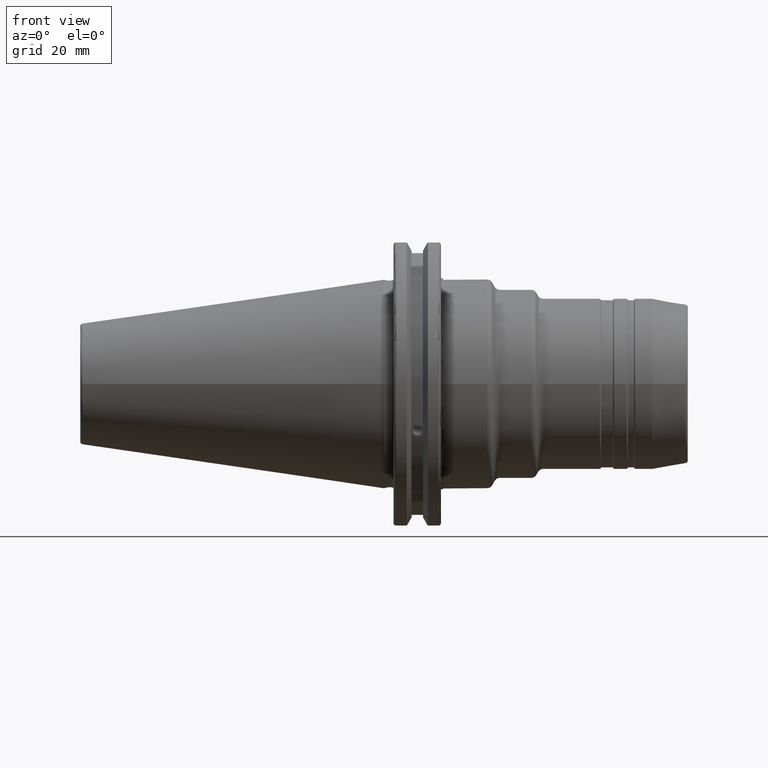
[diagram: clean part render]
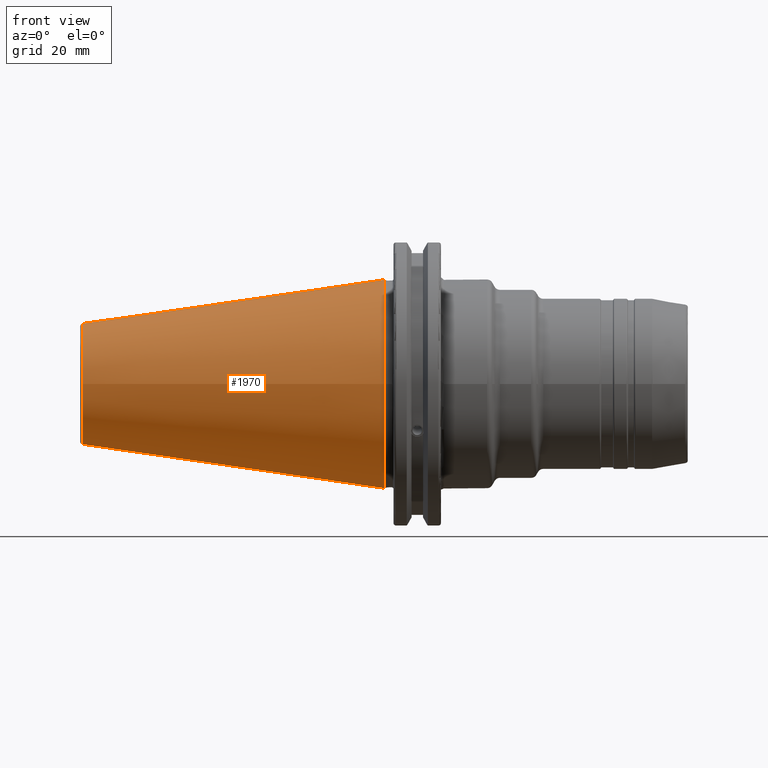
[diagram: same view with one face highlighted and labeled with its STEP entity id]
A machine part, front view. The second image highlights one B-rep face of the part: STEP entity #1970.
In plain terms, the highlighted conical surface has half-angle 8.297 deg.
Its self-contained STEP definition (entity closure, byte-faithful):
#104=CONICAL_SURFACE('',#2230,27.5166666666666,0.14481249823894);
#250=FACE_OUTER_BOUND('',#377,.T.);
#377=EDGE_LOOP('',(#1721,#1722,#1723,#1724,#1725));
#493=LINE('',#3895,#598);
#598=VECTOR('',#2778,27.5166666666666);
#738=CIRCLE('',#2224,20.233121911427);
#739=CIRCLE('',#2225,20.233121911427);
#743=CIRCLE('',#2231,34.925);
#941=VERTEX_POINT('',#3882);
#942=VERTEX_POINT('',#3883);
#945=VERTEX_POINT('',#3893);
#1217=EDGE_CURVE('',#941,#942,#738,.T.);
#1218=EDGE_CURVE('',#942,#941,#739,.T.);
#1222=EDGE_CURVE('',#945,#945,#743,.T.);
#1223=EDGE_CURVE('',#945,#942,#493,.T.);
#1721=ORIENTED_EDGE('',*,*,#1222,.F.);
#1722=ORIENTED_EDGE('',*,*,#1223,.T.);
#1723=ORIENTED_EDGE('',*,*,#1217,.F.);
#1724=ORIENTED_EDGE('',*,*,#1218,.F.);
#1725=ORIENTED_EDGE('',*,*,#1223,.F.);
#1970=ADVANCED_FACE('',(#250),#104,.T.);
#2224=AXIS2_PLACEMENT_3D('',#3884,#2762,#2763);
#2225=AXIS2_PLACEMENT_3D('',#3885,#2764,#2765);
#2230=AXIS2_PLACEMENT_3D('',#3892,#2774,#2775);
#2231=AXIS2_PLACEMENT_3D('',#3894,#2776,#2777);
#2762=DIRECTION('center_axis',(-1.,0.,0.));
#2763=DIRECTION('ref_axis',(0.,-1.,3.06161699786838E-17));
#2764=DIRECTION('center_axis',(-1.,0.,0.));
#2765=DIRECTION('ref_axis',(0.,-1.,3.06161699786838E-17));
#2774=DIRECTION('center_axis',(1.,0.,0.));
#2775=DIRECTION('ref_axis',(0.,1.,0.));
#2776=DIRECTION('center_axis',(1.,0.,0.));
#2777=DIRECTION('ref_axis',(0.,0.,-1.));
#2778=DIRECTION('',(-0.989532981063281,0.144306893071729,1.76724974695192E-17));
#3882=CARTESIAN_POINT('',(-100.744306893072,-2.47784279855872E-15,20.233121911427));
#3883=CARTESIAN_POINT('',(-100.744306893072,-20.233121911427,-2.47784279855872E-15));
#3884=CARTESIAN_POINT('Origin',(-100.744306893072,0.,-3.09730349819841E-15));
#3885=CARTESIAN_POINT('Origin',(-100.744306893072,0.,-3.09730349819841E-15));
#3892=CARTESIAN_POINT('Origin',(-50.8,0.,0.));
#3893=CARTESIAN_POINT('',(-8.88178419700125E-15,-34.925,-4.27707894602213E-15));
#3894=CARTESIAN_POINT('Origin',(0.,0.,0.));
#3895=CARTESIAN_POINT('',(-50.8,-27.5166666666666,-3.3698197756538E-15));